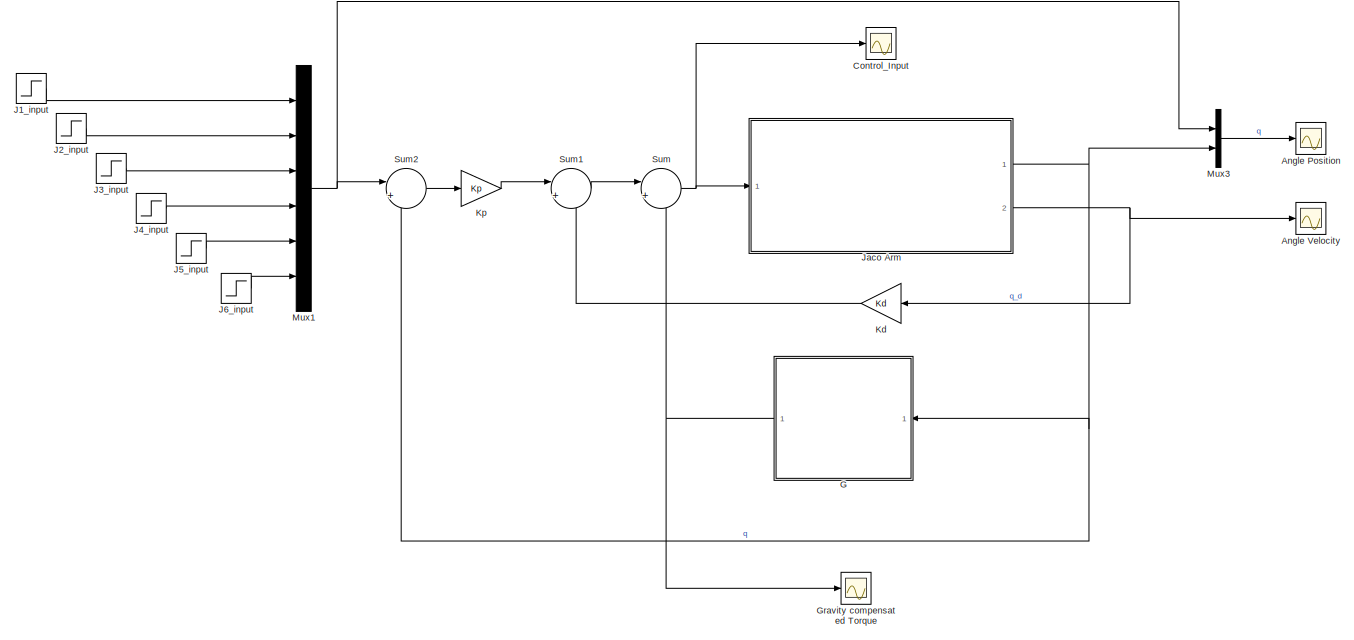
[diagram: root canvas - part 1/2, full width, top band]
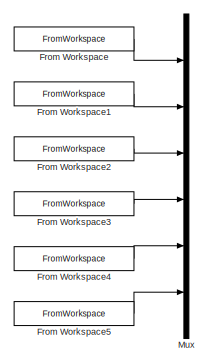
[diagram: root canvas - part 2/2, bottom left region]
MODEL slx_2f5dadaea7a9
KIND model
CONFIG AbsTol = auto
CONFIG EnableMultiTasking = on
CONFIG FixedStep = auto
CONFIG MaxStep = auto
CONFIG MinStep = auto
CONFIG RelTol = 1e-3
CONFIG SampleTimeConstraint = Unconstrained
CONFIG Solver = ode23tb
CONFIG SolverName = ode23tb
CONFIG StartTime = 0.0
CONFIG StopTime = 20
BLOCK [Scope] Angle Position
  NumInputPorts = 1
  Ports = [1]
  ScopeSpecificationString = Simulink.scopes.TimeScopeBlockCfg('CurrentConfiguration', extmgr.ConfigurationSet(extmgr.Configuration('Core','General UI',true,'FigureColor',[1 1 1]),extmgr.Configuration('Core','Source UI',true),extmgr.Configuration('Sources','WiredSimulink',true,'DataLoggingLimitDataPoints',true,'DataLoggingSaveFormat','Array','DataLoggingDecimation','1','DataLoggingDecimateData',true,'DataLoggingVariableName',...<+2825ch>
BLOCK [Scope] Angle Velocity
  NumInputPorts = 1
  Ports = [1]
  ScopeSpecificationString = Simulink.scopes.TimeScopeBlockCfg('CurrentConfiguration', extmgr.ConfigurationSet(extmgr.Configuration('Core','General UI',true),extmgr.Configuration('Core','Source UI',true),extmgr.Configuration('Sources','WiredSimulink',true,'DataLoggingVariableName','ScopeData1','DataLoggingLimitDataPoints',true,'DataLoggingSaveFormat','Array','DataLoggingDecimation','1','DataLoggingDecimateData',true),extmgr.C...<+1560ch>
BLOCK [Scope] Control_Input
  NumInputPorts = 1
  Ports = [1]
  ScopeSpecificationString = Simulink.scopes.TimeScopeBlockCfg('CurrentConfiguration', extmgr.ConfigurationSet(extmgr.Configuration('Core','General UI',true),extmgr.Configuration('Core','Source UI',true),extmgr.Configuration('Sources','WiredSimulink',true,'DataLoggingVariableName','ScopeData3','DataLoggingLimitDataPoints',true,'DataLoggingSaveFormat','Array','DataLoggingDecimation','1','DataLoggingDecimateData',true),extmgr.C...<+1619ch>
BLOCK [FromWorkspace] From Workspace
  Commented = on
  SampleTime = 0
  VariableName = [q1]
  ZeroCross = on
BLOCK [FromWorkspace] From Workspace1
  Commented = on
  SampleTime = 0
  VariableName = [q2]
  ZeroCross = on
BLOCK [FromWorkspace] From Workspace2
  Commented = on
  SampleTime = 0
  VariableName = [q3]
  ZeroCross = on
BLOCK [FromWorkspace] From Workspace3
  Commented = on
  SampleTime = 0
  VariableName = [q4]
  ZeroCross = on
BLOCK [FromWorkspace] From Workspace4
  Commented = on
  SampleTime = 0
  VariableName = [q5]
  ZeroCross = on
BLOCK [FromWorkspace] From Workspace5
  Commented = on
  SampleTime = 0
  VariableName = [q6]
  ZeroCross = on
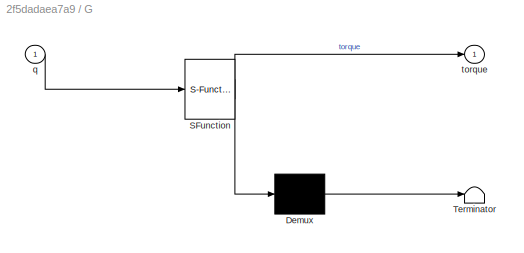
BLOCK [SubSystem] G
  ErrorFcn = Stateflow.Translate.translate
  PermitHierarchicalResolution = ExplicitOnly
  Ports = [1, 1]
  RequestExecContextInheritance = off
  SFBlockType = MATLAB Function
  TreatAsAtomicUnit = on
  Variant = off
BLOCK [Demux] G/ Demux 
  Outputs = 1
  Ports = [1, 1]
BLOCK [S-Function] G/ SFunction 
  EnableBusSupport = on
  FunctionName = sf_sfun
  PortCounts = [1 2]
  Ports = [1, 2]
  SFcnIsStateOwnerBlock = off
  SFunctionDeploymentMode = off
  Tag = Stateflow S-Function Jaco_3_7 2
BLOCK [Terminator] G/ Terminator 
BLOCK [Inport] G/q
  IconDisplay = Port number
BLOCK [Outport] G/torque
  IconDisplay = Port number
BLOCK [Scope] Gravity compensated Torque
  NumInputPorts = 1
  Ports = [1]
  ScopeSpecificationString = Simulink.scopes.TimeScopeBlockCfg('CurrentConfiguration', extmgr.ConfigurationSet(extmgr.Configuration('Core','General UI',true,'FigureColor',[1 1 1]),extmgr.Configuration('Core','Source UI',true),extmgr.Configuration('Sources','WiredSimulink',true,'DataLoggingVariableName','ScopeData2','DataLoggingLimitDataPoints',true,'DataLoggingSaveFormat','Array','DataLoggingDecimation','1','DataLoggingDecima...<+2160ch>
BLOCK [Step] J1_input
  Before = 0.2
  SampleTime = 0
  Time = 5
BLOCK [Step] J2_input
  Before = 0.2
  SampleTime = 0
  Time = 5
BLOCK [Step] J3_input
  Before = 0.2
  SampleTime = 0
  Time = 5
BLOCK [Step] J4_input
  Before = 0.2
  SampleTime = 0
  Time = 5
BLOCK [Step] J5_input
  Before = 0.2
  SampleTime = 0
  Time = 5
BLOCK [Step] J6_input
  Before = 0.2
  SampleTime = 0
  Time = 5
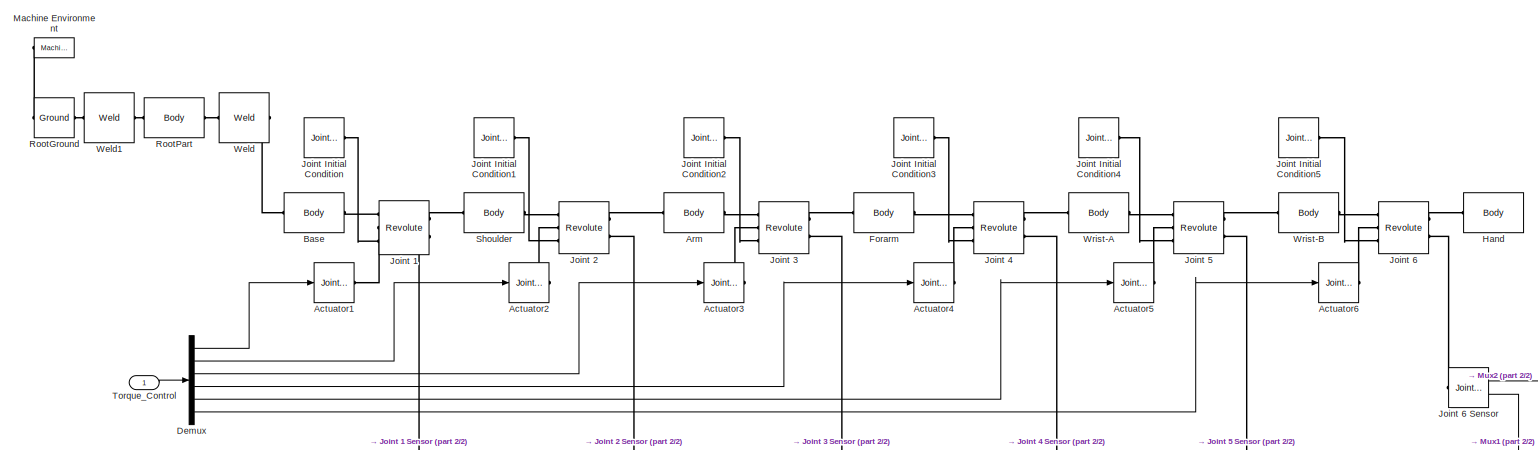
[diagram: Jaco Arm  - part 1/2, full width, top band]
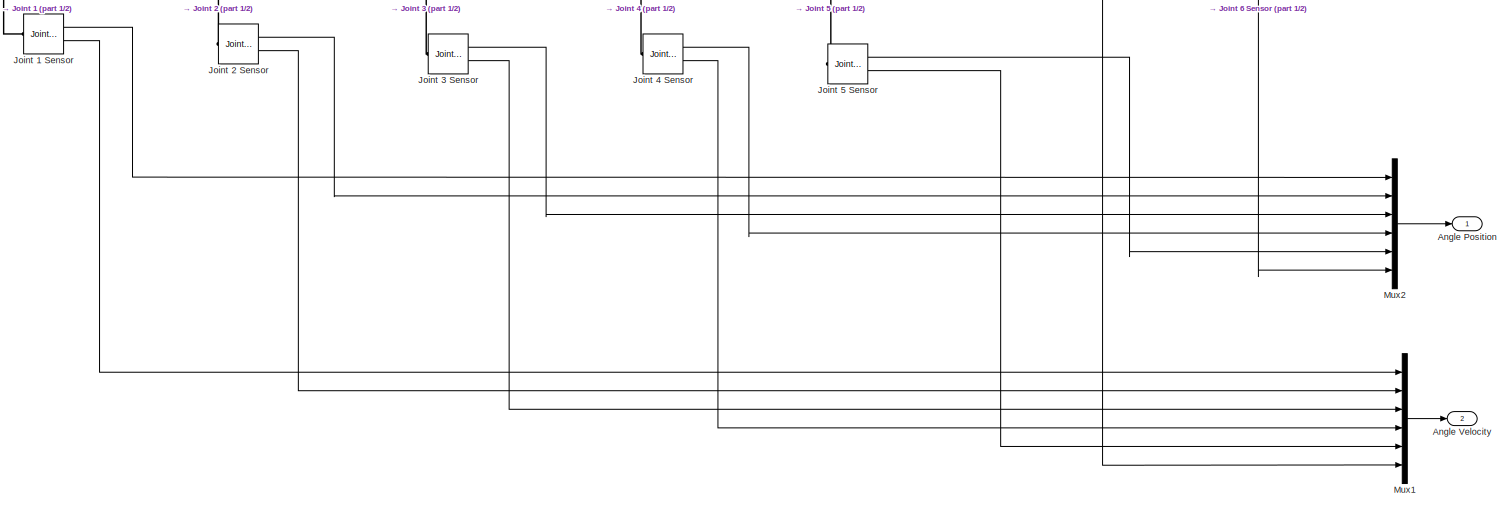
[diagram: Jaco Arm  - part 2/2, full width, bottom band]
BLOCK [SubSystem] Jaco Arm 
  Ports = [1, 2]
  RequestExecContextInheritance = off
  Variant = off
BLOCK [Reference] Jaco Arm /Actuator1  REF=mblibv1/Sensors & 
Actuators/Joint Actuator
  Ports = [1, 0, 0, 0, 0, 0, 1]
  SourceBlock = mblibv1/Sensors & \nActuators/Joint Actuator
  SourceProductBaseCode = MS
  SourceProductName = Simscape Multibody
  SourceType = Joint Actuator
BLOCK [Reference] Jaco Arm /Actuator2  REF=mblibv1/Sensors & 
Actuators/Joint Actuator
  Ports = [1, 0, 0, 0, 0, 0, 1]
  SourceBlock = mblibv1/Sensors & \nActuators/Joint Actuator
  SourceProductBaseCode = MS
  SourceProductName = Simscape Multibody
  SourceType = Joint Actuator
BLOCK [Reference] Jaco Arm /Actuator3  REF=mblibv1/Sensors & 
Actuators/Joint Actuator
  Ports = [1, 0, 0, 0, 0, 0, 1]
  SourceBlock = mblibv1/Sensors & \nActuators/Joint Actuator
  SourceProductBaseCode = MS
  SourceProductName = Simscape Multibody
  SourceType = Joint Actuator
BLOCK [Reference] Jaco Arm /Actuator4  REF=mblibv1/Sensors & 
Actuators/Joint Actuator
  Ports = [1, 0, 0, 0, 0, 0, 1]
  SourceBlock = mblibv1/Sensors & \nActuators/Joint Actuator
  SourceProductBaseCode = MS
  SourceProductName = Simscape Multibody
  SourceType = Joint Actuator
BLOCK [Reference] Jaco Arm /Actuator5  REF=mblibv1/Sensors & 
Actuators/Joint Actuator
  Ports = [1, 0, 0, 0, 0, 0, 1]
  SourceBlock = mblibv1/Sensors & \nActuators/Joint Actuator
  SourceProductBaseCode = MS
  SourceProductName = Simscape Multibody
  SourceType = Joint Actuator
BLOCK [Reference] Jaco Arm /Actuator6  REF=mblibv1/Sensors & 
Actuators/Joint Actuator
  Ports = [1, 0, 0, 0, 0, 0, 1]
  SourceBlock = mblibv1/Sensors & \nActuators/Joint Actuator
  SourceProductBaseCode = MS
  SourceProductName = Simscape Multibody
  SourceType = Joint Actuator
BLOCK [Outport] Jaco Arm /Angle Position 
  IconDisplay = Port number
BLOCK [Outport] Jaco Arm /Angle Velocity
  IconDisplay = Port number
  Port = 2
BLOCK [Reference] Jaco Arm /Arm  REF=mblibv1/Bodies/Body
  Ports = [0, 0, 0, 0, 0, 1, 1]
  SourceBlock = mblibv1/Bodies/Body
  SourceProductBaseCode = MS
  SourceProductName = Simscape Multibody
  SourceType = Body
BLOCK [Reference] Jaco Arm /Base  REF=mblibv1/Bodies/Body
  Ports = [0, 0, 0, 0, 0, 1, 1]
  SourceBlock = mblibv1/Bodies/Body
  SourceProductBaseCode = MS
  SourceProductName = Simscape Multibody
  SourceType = Body
BLOCK [Demux] Jaco Arm /Demux
  DisplayOption = bar
  Outputs = 6
  Ports = [1, 6]
BLOCK [Reference] Jaco Arm /Forarm  REF=mblibv1/Bodies/Body
  Ports = [0, 0, 0, 0, 0, 1, 1]
  SourceBlock = mblibv1/Bodies/Body
  SourceProductBaseCode = MS
  SourceProductName = Simscape Multibody
  SourceType = Body
BLOCK [Reference] Jaco Arm /Hand  REF=mblibv1/Bodies/Body
  Ports = [0, 0, 0, 0, 0, 1]
  SourceBlock = mblibv1/Bodies/Body
  SourceProductBaseCode = MS
  SourceProductName = Simscape Multibody
  SourceType = Body
BLOCK [Reference] Jaco Arm /Joint 1  REF=mblibv1/Joints/Revolute
  Ports = [0, 0, 0, 0, 0, 3, 2]
  SourceBlock = mblibv1/Joints/Revolute
  SourceProductBaseCode = MS
  SourceProductName = Simscape Multibody
  SourceType = Revolute
BLOCK [Reference] Jaco Arm /Joint 1 Sensor  REF=mblibv1/Sensors & 
Actuators/Joint Sensor
  Ports = [0, 2, 0, 0, 0, 1]
  SourceBlock = mblibv1/Sensors & \nActuators/Joint Sensor
  SourceProductBaseCode = MS
  SourceProductName = Simscape Multibody
  SourceType = Joint Sensor
BLOCK [Reference] Jaco Arm /Joint 2  REF=mblibv1/Joints/Revolute
  Ports = [0, 0, 0, 0, 0, 3, 2]
  SourceBlock = mblibv1/Joints/Revolute
  SourceProductBaseCode = MS
  SourceProductName = Simscape Multibody
  SourceType = Revolute
BLOCK [Reference] Jaco Arm /Joint 2 Sensor  REF=mblibv1/Sensors & 
Actuators/Joint Sensor
  Ports = [0, 2, 0, 0, 0, 1]
  SourceBlock = mblibv1/Sensors & \nActuators/Joint Sensor
  SourceProductBaseCode = MS
  SourceProductName = Simscape Multibody
  SourceType = Joint Sensor
BLOCK [Reference] Jaco Arm /Joint 3  REF=mblibv1/Joints/Revolute
  Ports = [0, 0, 0, 0, 0, 3, 2]
  SourceBlock = mblibv1/Joints/Revolute
  SourceProductBaseCode = MS
  SourceProductName = Simscape Multibody
  SourceType = Revolute
BLOCK [Reference] Jaco Arm /Joint 3 Sensor  REF=mblibv1/Sensors & 
Actuators/Joint Sensor
  Ports = [0, 2, 0, 0, 0, 1]
  SourceBlock = mblibv1/Sensors & \nActuators/Joint Sensor
  SourceProductBaseCode = MS
  SourceProductName = Simscape Multibody
  SourceType = Joint Sensor
BLOCK [Reference] Jaco Arm /Joint 4  REF=mblibv1/Joints/Revolute
  Ports = [0, 0, 0, 0, 0, 3, 2]
  SourceBlock = mblibv1/Joints/Revolute
  SourceProductBaseCode = MS
  SourceProductName = Simscape Multibody
  SourceType = Revolute
BLOCK [Reference] Jaco Arm /Joint 4 Sensor  REF=mblibv1/Sensors & 
Actuators/Joint Sensor
  Ports = [0, 2, 0, 0, 0, 1]
  SourceBlock = mblibv1/Sensors & \nActuators/Joint Sensor
  SourceProductBaseCode = MS
  SourceProductName = Simscape Multibody
  SourceType = Joint Sensor
BLOCK [Reference] Jaco Arm /Joint 5  REF=mblibv1/Joints/Revolute
  Ports = [0, 0, 0, 0, 0, 3, 2]
  SourceBlock = mblibv1/Joints/Revolute
  SourceProductBaseCode = MS
  SourceProductName = Simscape Multibody
  SourceType = Revolute
BLOCK [Reference] Jaco Arm /Joint 5 Sensor  REF=mblibv1/Sensors & 
Actuators/Joint Sensor
  Ports = [0, 2, 0, 0, 0, 1]
  SourceBlock = mblibv1/Sensors & \nActuators/Joint Sensor
  SourceProductBaseCode = MS
  SourceProductName = Simscape Multibody
  SourceType = Joint Sensor
BLOCK [Reference] Jaco Arm /Joint 6  REF=mblibv1/Joints/Revolute
  Ports = [0, 0, 0, 0, 0, 3, 2]
  SourceBlock = mblibv1/Joints/Revolute
  SourceProductBaseCode = MS
  SourceProductName = Simscape Multibody
  SourceType = Revolute
BLOCK [Reference] Jaco Arm /Joint 6 Sensor  REF=mblibv1/Sensors & 
Actuators/Joint Sensor
  Ports = [0, 2, 0, 0, 0, 1]
  SourceBlock = mblibv1/Sensors & \nActuators/Joint Sensor
  SourceProductBaseCode = MS
  SourceProductName = Simscape Multibody
  SourceType = Joint Sensor
BLOCK [Reference] Jaco Arm /Joint Initial Condition  REF=mblibv1/Sensors & 
Actuators/Joint Initial Condition
  Ports = [0, 0, 0, 0, 0, 0, 1]
  SourceBlock = mblibv1/Sensors & \nActuators/Joint Initial Condition
  SourceProductBaseCode = MS
  SourceProductName = Simscape Multibody
  SourceType = Joint Initial Condition
BLOCK [Reference] Jaco Arm /Joint Initial Condition1  REF=mblibv1/Sensors & 
Actuators/Joint Initial Condition
  Ports = [0, 0, 0, 0, 0, 0, 1]
  SourceBlock = mblibv1/Sensors & \nActuators/Joint Initial Condition
  SourceProductBaseCode = MS
  SourceProductName = Simscape Multibody
  SourceType = Joint Initial Condition
BLOCK [Reference] Jaco Arm /Joint Initial Condition2  REF=mblibv1/Sensors & 
Actuators/Joint Initial Condition
  Ports = [0, 0, 0, 0, 0, 0, 1]
  SourceBlock = mblibv1/Sensors & \nActuators/Joint Initial Condition
  SourceProductBaseCode = MS
  SourceProductName = Simscape Multibody
  SourceType = Joint Initial Condition
BLOCK [Reference] Jaco Arm /Joint Initial Condition3  REF=mblibv1/Sensors & 
Actuators/Joint Initial Condition
  Ports = [0, 0, 0, 0, 0, 0, 1]
  SourceBlock = mblibv1/Sensors & \nActuators/Joint Initial Condition
  SourceProductBaseCode = MS
  SourceProductName = Simscape Multibody
  SourceType = Joint Initial Condition
BLOCK [Reference] Jaco Arm /Joint Initial Condition4  REF=mblibv1/Sensors & 
Actuators/Joint Initial Condition
  Ports = [0, 0, 0, 0, 0, 0, 1]
  SourceBlock = mblibv1/Sensors & \nActuators/Joint Initial Condition
  SourceProductBaseCode = MS
  SourceProductName = Simscape Multibody
  SourceType = Joint Initial Condition
BLOCK [Reference] Jaco Arm /Joint Initial Condition5  REF=mblibv1/Sensors & 
Actuators/Joint Initial Condition
  Ports = [0, 0, 0, 0, 0, 0, 1]
  SourceBlock = mblibv1/Sensors & \nActuators/Joint Initial Condition
  SourceProductBaseCode = MS
  SourceProductName = Simscape Multibody
  SourceType = Joint Initial Condition
BLOCK [Reference] Jaco Arm /Machine Environment  REF=mblibv1/Bodies/Machine
Environment
  Ports = [0, 0, 0, 0, 0, 0, 1]
  SourceBlock = mblibv1/Bodies/Machine\nEnvironment
  SourceProductBaseCode = MS
  SourceProductName = Simscape Multibody
  SourceType = Machine Environment
BLOCK [Mux] Jaco Arm /Mux1
  DisplayOption = bar
  Inputs = 6
  Ports = [6, 1]
BLOCK [Mux] Jaco Arm /Mux2
  DisplayOption = bar
  Inputs = 6
  Ports = [6, 1]
BLOCK [Reference] Jaco Arm /RootGround  REF=mblibv1/Bodies/Ground
  Ports = [0, 0, 0, 0, 0, 1, 1]
  SourceBlock = mblibv1/Bodies/Ground
  SourceProductBaseCode = MS
  SourceProductName = Simscape Multibody
  SourceType = Ground
  UserDataPersistent = on
BLOCK [Reference] Jaco Arm /RootPart  REF=mblibv1/Bodies/Body
  Ports = [0, 0, 0, 0, 0, 1, 1]
  SourceBlock = mblibv1/Bodies/Body
  SourceProductBaseCode = MS
  SourceProductName = Simscape Multibody
  SourceType = Body
BLOCK [Reference] Jaco Arm /Shoulder  REF=mblibv1/Bodies/Body
  Ports = [0, 0, 0, 0, 0, 1, 1]
  SourceBlock = mblibv1/Bodies/Body
  SourceProductBaseCode = MS
  SourceProductName = Simscape Multibody
  SourceType = Body
BLOCK [Inport] Jaco Arm /Torque_Control 
  IconDisplay = Port number
BLOCK [Reference] Jaco Arm /Weld  REF=mblibv1/Joints/Weld
  Ports = [0, 0, 0, 0, 0, 1, 1]
  SourceBlock = mblibv1/Joints/Weld
  SourceProductBaseCode = MS
  SourceProductName = Simscape Multibody
  SourceType = Weld
BLOCK [Reference] Jaco Arm /Weld1  REF=mblibv1/Joints/Weld
  Ports = [0, 0, 0, 0, 0, 1, 1]
  SourceBlock = mblibv1/Joints/Weld
  SourceProductBaseCode = MS
  SourceProductName = Simscape Multibody
  SourceType = Weld
BLOCK [Reference] Jaco Arm /Wrist-A  REF=mblibv1/Bodies/Body
  Ports = [0, 0, 0, 0, 0, 1, 1]
  SourceBlock = mblibv1/Bodies/Body
  SourceProductBaseCode = MS
  SourceProductName = Simscape Multibody
  SourceType = Body
BLOCK [Reference] Jaco Arm /Wrist-B  REF=mblibv1/Bodies/Body
  Ports = [0, 0, 0, 0, 0, 1, 1]
  SourceBlock = mblibv1/Bodies/Body
  SourceProductBaseCode = MS
  SourceProductName = Simscape Multibody
  SourceType = Body
BLOCK [Gain] Kd
  Gain = Kd
  Multiplication = Matrix(K*u)
  OutDataTypeStr = Inherit: Inherit via internal rule
  ParamDataTypeStr = Inherit: Inherit via internal rule
  SaturateOnIntegerOverflow = off
BLOCK [Gain] Kp
  Gain = Kp
  Multiplication = Matrix(K*u)
  OutDataTypeStr = Inherit: Inherit via internal rule
  ParamDataTypeStr = Inherit: Inherit via internal rule
  SaturateOnIntegerOverflow = off
BLOCK [Mux] Mux
  Commented = on
  DisplayOption = bar
  Inputs = 6
  Ports = [6, 1]
BLOCK [Mux] Mux1
  DisplayOption = bar
  Inputs = 6
  Ports = [6, 1]
BLOCK [Mux] Mux3
  DisplayOption = bar
  Inputs = 2
  Ports = [2, 1]
BLOCK [Sum] Sum
  IconShape = round
  InputSameDT = off
  Inputs = |++
  OutDataTypeStr = Inherit: Inherit via internal rule
  Ports = [2, 1]
  SaturateOnIntegerOverflow = off
BLOCK [Sum] Sum1
  IconShape = round
  InputSameDT = off
  Inputs = |+-
  OutDataTypeStr = Inherit: Inherit via internal rule
  Ports = [2, 1]
  SaturateOnIntegerOverflow = off
BLOCK [Sum] Sum2
  IconShape = round
  InputSameDT = off
  Inputs = |+-
  OutDataTypeStr = Inherit: Inherit via internal rule
  Ports = [2, 1]
  SaturateOnIntegerOverflow = off
LINE From Workspace1:1 -> Mux:2
LINE From Workspace2:1 -> Mux:3
LINE From Workspace3:1 -> Mux:4
LINE From Workspace4:1 -> Mux:5
LINE From Workspace5:1 -> Mux:6
LINE From Workspace:1 -> Mux:1
NET G:1 -> Gravity compensated Torque:1, Sum:2
LINE J1_input:1 -> Mux1:1
LINE J2_input:1 -> Mux1:2
LINE J3_input:1 -> Mux1:3
LINE J4_input:1 -> Mux1:4
LINE J5_input:1 -> Mux1:5
LINE J6_input:1 -> Mux1:6
LINE Jaco Arm /Demux:1 -> Jaco Arm /Actuator1:1
LINE Jaco Arm /Demux:2 -> Jaco Arm /Actuator2:1
LINE Jaco Arm /Demux:3 -> Jaco Arm /Actuator3:1
LINE Jaco Arm /Demux:4 -> Jaco Arm /Actuator4:1
LINE Jaco Arm /Demux:5 -> Jaco Arm /Actuator5:1
LINE Jaco Arm /Demux:6 -> Jaco Arm /Actuator6:1
LINE Jaco Arm /Joint 1 Sensor:1 -> Jaco Arm /Mux2:1
LINE Jaco Arm /Joint 1 Sensor:2 -> Jaco Arm /Mux1:1
LINE Jaco Arm /Joint 2 Sensor:1 -> Jaco Arm /Mux2:2
LINE Jaco Arm /Joint 2 Sensor:2 -> Jaco Arm /Mux1:2
LINE Jaco Arm /Joint 3 Sensor:1 -> Jaco Arm /Mux2:3
LINE Jaco Arm /Joint 3 Sensor:2 -> Jaco Arm /Mux1:3
LINE Jaco Arm /Joint 4 Sensor:1 -> Jaco Arm /Mux2:4
LINE Jaco Arm /Joint 4 Sensor:2 -> Jaco Arm /Mux1:4
LINE Jaco Arm /Joint 5 Sensor:1 -> Jaco Arm /Mux2:5
LINE Jaco Arm /Joint 5 Sensor:2 -> Jaco Arm /Mux1:5
LINE Jaco Arm /Joint 6 Sensor:1 -> Jaco Arm /Mux2:6
LINE Jaco Arm /Joint 6 Sensor:2 -> Jaco Arm /Mux1:6
LINE Jaco Arm /Mux1:1 -> Jaco Arm /Angle Velocity:1
LINE Jaco Arm /Mux2:1 -> Jaco Arm /Angle Position :1
LINE Jaco Arm /Torque_Control :1 -> Jaco Arm /Demux:1
NET Jaco Arm :1 -> G:1, Mux3:2, Sum2:2
NET Jaco Arm :2 -> Angle Velocity:1, Kd:1
LINE Kd:1 -> Sum1:2
LINE Kp:1 -> Sum1:1
NET Mux1:1 -> Mux3:1, Sum2:1
LINE Mux3:1 -> Angle Position:1
LINE Sum1:1 -> Sum:1
LINE Sum2:1 -> Kp:1
NET Sum:1 -> Control_Input:1, Jaco Arm :1
PLINE Jaco Arm /Actuator1:RConn1 -- Jaco Arm /Joint 1:LConn2
PLINE Jaco Arm /Actuator2:RConn1 -- Jaco Arm /Joint 2:LConn2
PLINE Jaco Arm /Actuator3:RConn1 -- Jaco Arm /Joint 3:LConn2
PLINE Jaco Arm /Actuator4:RConn1 -- Jaco Arm /Joint 4:LConn2
PLINE Jaco Arm /Actuator5:RConn1 -- Jaco Arm /Joint 5:LConn2
PLINE Jaco Arm /Actuator6:RConn1 -- Jaco Arm /Joint 6:LConn2
PLINE Jaco Arm /Arm:LConn1 -- Jaco Arm /Joint 2:RConn1
PLINE Jaco Arm /Arm:RConn1 -- Jaco Arm /Joint 3:LConn1
PLINE Jaco Arm /Base:LConn1 -- Jaco Arm /Weld:RConn1
PLINE Jaco Arm /Base:RConn1 -- Jaco Arm /Joint 1:LConn1
PLINE Jaco Arm /Forarm:LConn1 -- Jaco Arm /Joint 3:RConn1
PLINE Jaco Arm /Forarm:RConn1 -- Jaco Arm /Joint 4:LConn1
PLINE Jaco Arm /Hand:LConn1 -- Jaco Arm /Joint 6:RConn1
PLINE Jaco Arm /Joint 1 Sensor:LConn1 -- Jaco Arm /Joint 1:RConn2
PLINE Jaco Arm /Joint 1:LConn3 -- Jaco Arm /Joint Initial Condition:RConn1
PLINE Jaco Arm /Joint 1:RConn1 -- Jaco Arm /Shoulder:LConn1
PLINE Jaco Arm /Joint 2 Sensor:LConn1 -- Jaco Arm /Joint 2:RConn2
PLINE Jaco Arm /Joint 2:LConn1 -- Jaco Arm /Shoulder:RConn1
PLINE Jaco Arm /Joint 2:LConn3 -- Jaco Arm /Joint Initial Condition1:RConn1
PLINE Jaco Arm /Joint 3 Sensor:LConn1 -- Jaco Arm /Joint 3:RConn2
PLINE Jaco Arm /Joint 3:LConn3 -- Jaco Arm /Joint Initial Condition2:RConn1
PLINE Jaco Arm /Joint 4 Sensor:LConn1 -- Jaco Arm /Joint 4:RConn2
PLINE Jaco Arm /Joint 4:LConn3 -- Jaco Arm /Joint Initial Condition3:RConn1
PLINE Jaco Arm /Joint 4:RConn1 -- Jaco Arm /Wrist-A:LConn1
PLINE Jaco Arm /Joint 5 Sensor:LConn1 -- Jaco Arm /Joint 5:RConn2
PLINE Jaco Arm /Joint 5:LConn1 -- Jaco Arm /Wrist-A:RConn1
PLINE Jaco Arm /Joint 5:LConn3 -- Jaco Arm /Joint Initial Condition4:RConn1
PLINE Jaco Arm /Joint 5:RConn1 -- Jaco Arm /Wrist-B:LConn1
PLINE Jaco Arm /Joint 6 Sensor:LConn1 -- Jaco Arm /Joint 6:RConn2
PLINE Jaco Arm /Joint 6:LConn1 -- Jaco Arm /Wrist-B:RConn1
PLINE Jaco Arm /Joint 6:LConn3 -- Jaco Arm /Joint Initial Condition5:RConn1
PLINE Jaco Arm /Machine Environment:RConn1 -- Jaco Arm /RootGround:LConn1
PLINE Jaco Arm /RootGround:RConn1 -- Jaco Arm /Weld1:LConn1
PLINE Jaco Arm /RootPart:LConn1 -- Jaco Arm /Weld1:RConn1
PLINE Jaco Arm /RootPart:RConn1 -- Jaco Arm /Weld:LConn1
note: NET lines group one-source signal fan-out (src -> all destinations, sorted); 1:1 wires keep LINE
CHART G states=1 transitions=1
  STATE_LABEL 'eML_blk_kernel()'
  STATE_LABEL 'SCRIPT:\nfunction  torque = gravity(q)\n%GRAVITY\n%    TORQUE = GRAVITY(Q1,Q2,Q3,Q4,Q5,Q6)\n% [tau1,tau2,tau3,tau4,tau5,tau6]\n%    This function was generated by the Symbolic Math Toolbox version 5.8.\n%    15-Mar-2017 14:16:45\nq1=q(1);\nq2=q(2);\nq3=q(3);\nq4=q(4);\nq5=q(5);\nq6=q(6);\n\nt2 = cos(q2);\nt3 = pi.*(1.1e1./3.6e1);\nt4 = sin(q3);\nt5 = cos(q3);\nt6 = sin(q2);\nt9 = t2.*t4;\nt10 = t5.*t6;\nt7 = t9-t10;\nt...<+3431ch>'
